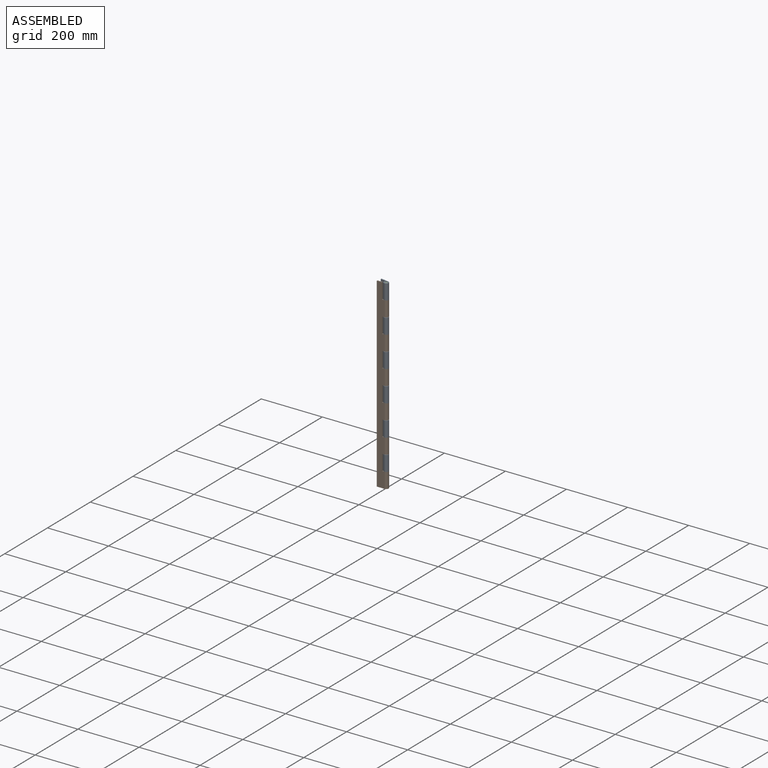
[diagram: assembled view]
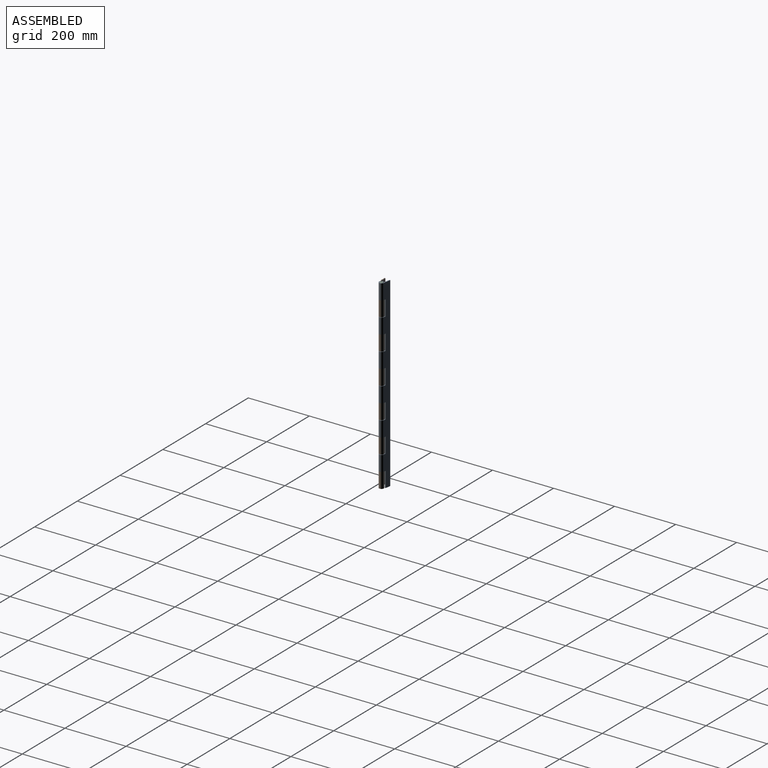
[diagram: assembled view, second angle]
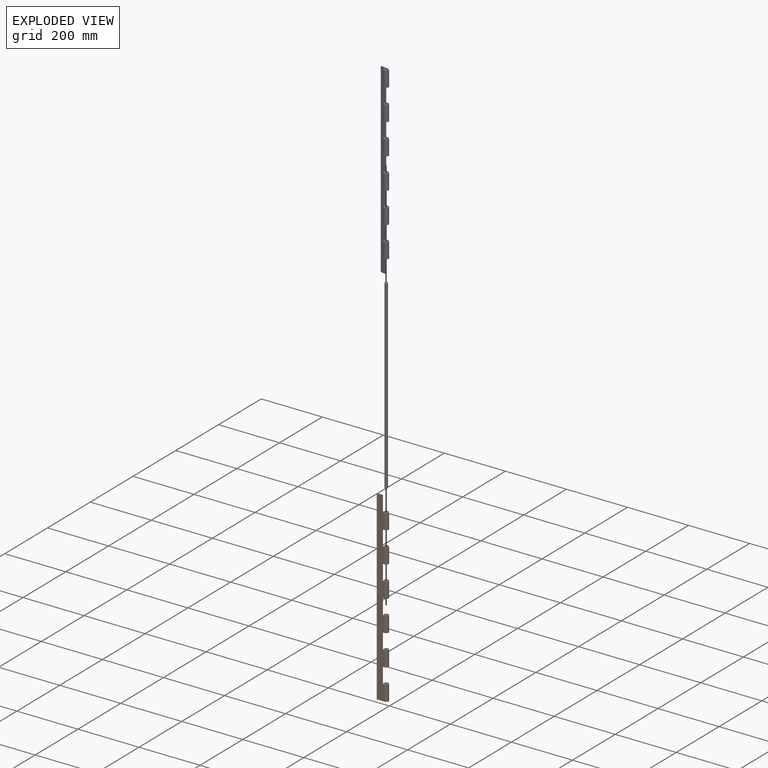
[diagram: exploded view]
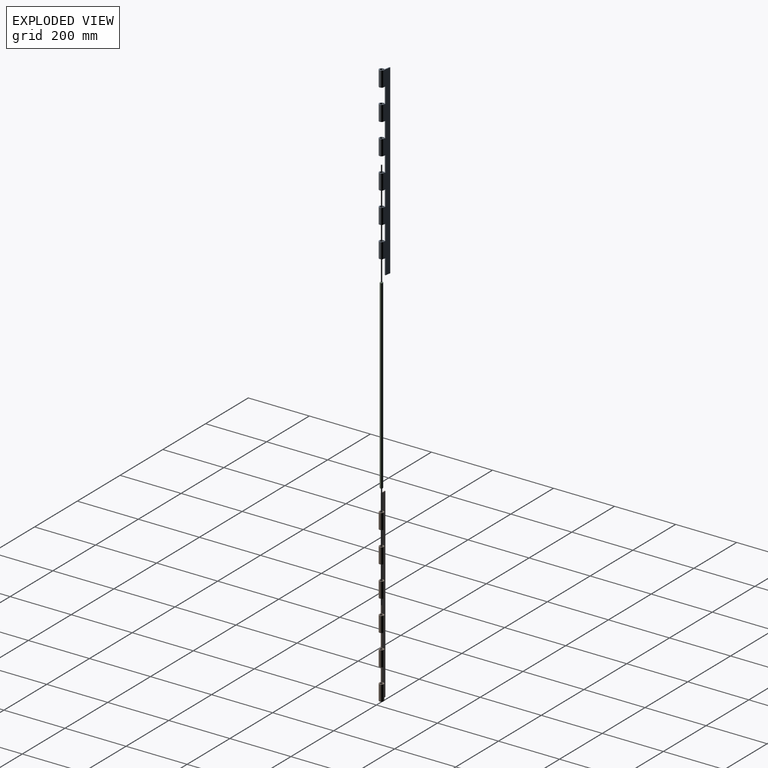
[diagram: exploded view, second angle]
ASSEMBLY  parts=3 mates=2
PART A: 40 faces, bbox 33.2x15.6x609.6 mm
  f0: cylinder r=7.81mm len=50.8mm, axis (0,0,-1), area 2042.9mm2, adj f16,f19,f23,f25
  f1: cylinder r=4.76mm len=50.8mm, axis (0,0,-1), area 1245.7mm2, adj f17,f18,f21,f39
  f2: cylinder r=7.81mm len=50.8mm, axis (0,0,-1), area 2042.9mm2, adj f15,f19,f27,f28
  f3: cylinder r=4.76mm len=50.8mm, axis (0,0,-1), area 1245.7mm2, adj f16,f17,f23,f25
  f4: cylinder r=4.76mm len=50.8mm, axis (0,0,-1), area 1245.7mm2, adj f15,f17,f27,f28
  f5: cylinder r=7.81mm len=50.8mm, axis (0,0,-1), area 2042.9mm2, adj f14,f19,f30,f31
  f6: cylinder r=4.76mm len=50.8mm, axis (0,0,-1), area 1245.7mm2, adj f14,f17,f30,f31
  f7: cylinder r=7.81mm len=50.8mm, axis (0,0,-1), area 2042.9mm2, adj f13,f19,f33,f34
  f8: cylinder r=4.76mm len=50.8mm, axis (0,0,-1), area 1245.7mm2, adj f13,f17,f33,f34
  f9: cylinder r=7.81mm len=50.8mm, axis (0,0,-1), area 2042.9mm2, adj f12,f19,f36,f37
  f10: cylinder r=4.76mm len=50.8mm, axis (0,0,-1), area 1245.7mm2, adj f12,f17,f36,f37
  f11: cylinder r=7.81mm len=50.8mm, axis (0,0,-1), area 2042.9mm2, adj f18,f19,f21,f39
  f12: plane 50.8x2.76mm, normal (-0.42,-0.91,0), area 154.8mm2, adj f9,f10,f36,f37
  f13: plane 50.8x2.76mm, normal (-0.42,-0.91,0), area 154.8mm2, adj f7,f8,f33,f34
  f14: plane 50.8x2.76mm, normal (-0.42,-0.91,0), area 154.8mm2, adj f5,f6,f30,f31
  f15: plane 50.8x2.76mm, normal (-0.42,-0.91,0), area 154.8mm2, adj f2,f4,f27,f28
  f16: plane 50.8x2.76mm, normal (-0.42,-0.91,0), area 154.8mm2, adj f0,f3,f23,f25
  f17: plane 609.6x25.4mm, normal (0,1,0), area 13103.2mm2, adj f1,f3,f4,f6,f8,f10,f20,f21
  f18: plane 50.8x2.76mm, normal (-0.42,-0.91,0), area 154.8mm2, adj f1,f11,f21,f39
  f19: plane 609.6x25.4mm, normal (0,-1,0), area 13103.2mm2, adj f0,f2,f5,f7,f9,f11,f20,f21
  f20: plane 609.6x3.05mm, normal (1,0,0), area 1858.1mm2, adj f17,f19,f21,f22
  f21: plane 33.21x15.62mm, normal (0,0,1), area 176.1mm2, adj f1,f11,f17,f18,f19,f20
  f22: plane 17.59x3.05mm, normal (0,0,-1), area 53.6mm2, adj f17,f19,f20,f24
  f23: plane 15.62x15.62mm, normal (0,0,-1), area 122.5mm2, adj f0,f3,f16,f17,f19,f24
  f24: plane 50.8x3.05mm, normal (-1,0,0), area 154.8mm2, adj f17,f19,f22,f23
  f25: plane 15.62x15.62mm, normal (0,0,1), area 122.5mm2, adj f0,f3,f16,f17,f19,f26
  f26: plane 50.8x3.05mm, normal (-1,0,0), area 154.8mm2, adj f17,f19,f25,f27
  f27: plane 15.62x15.62mm, normal (0,0,-1), area 122.5mm2, adj f2,f4,f15,f17,f19,f26
  f28: plane 15.62x15.62mm, normal (0,0,1), area 122.5mm2, adj f2,f4,f15,f17,f19,f29
  f29: plane 50.8x3.05mm, normal (-1,0,0), area 154.8mm2, adj f17,f19,f28,f30
  f30: plane 15.62x15.62mm, normal (0,0,-1), area 122.5mm2, adj f5,f6,f14,f17,f19,f29
  f31: plane 15.62x15.62mm, normal (0,0,1), area 122.5mm2, adj f5,f6,f14,f17,f19,f32
  f32: plane 50.8x3.05mm, normal (-1,0,0), area 154.8mm2, adj f17,f19,f31,f33
  f33: plane 15.62x15.62mm, normal (0,0,-1), area 122.5mm2, adj f7,f8,f13,f17,f19,f32
  f34: plane 15.62x15.62mm, normal (0,0,1), area 122.5mm2, adj f7,f8,f13,f17,f19,f35
  f35: plane 50.8x3.05mm, normal (-1,0,0), area 154.8mm2, adj f17,f19,f34,f36
  f36: plane 15.62x15.62mm, normal (0,0,-1), area 122.5mm2, adj f9,f10,f12,f17,f19,f35
  f37: plane 15.62x15.62mm, normal (0,0,1), area 122.5mm2, adj f9,f10,f12,f17,f19,f38
  f38: plane 50.8x3.05mm, normal (-1,0,0), area 154.8mm2, adj f17,f19,f37,f39
  f39: plane 15.62x15.62mm, normal (0,0,-1), area 122.5mm2, adj f1,f11,f17,f18,f19,f38
PART B: 40 faces, bbox 33.2x15.6x609.6 mm
  f0: cylinder r=4.76mm len=50.8mm, axis (0,0,-1), area 1245.7mm2, adj f20,f37,f38,f39
  f1: cylinder r=7.81mm len=50.8mm, axis (0,0,-1), area 2042.9mm2, adj f18,f37,f38,f39
  f2: cylinder r=4.76mm len=50.8mm, axis (0,0,-1), area 1245.7mm2, adj f20,f34,f35,f36
  f3: cylinder r=7.81mm len=50.8mm, axis (0,0,-1), area 2042.9mm2, adj f18,f34,f35,f36
  f4: cylinder r=4.76mm len=50.8mm, axis (0,0,-1), area 1245.7mm2, adj f20,f31,f32,f33
  f5: cylinder r=7.81mm len=50.8mm, axis (0,0,-1), area 2042.9mm2, adj f18,f31,f32,f33
  f6: cylinder r=4.76mm len=50.8mm, axis (0,0,-1), area 1245.7mm2, adj f20,f28,f29,f30
  f7: cylinder r=7.81mm len=50.8mm, axis (0,0,-1), area 2042.9mm2, adj f18,f28,f29,f30
  f8: cylinder r=4.76mm len=50.8mm, axis (0,0,-1), area 1245.7mm2, adj f20,f25,f26,f27
  f9: cylinder r=7.81mm len=50.8mm, axis (0,0,-1), area 2042.9mm2, adj f18,f25,f26,f27
  f10: cylinder r=4.76mm len=50.8mm, axis (0,0,-1), area 1245.7mm2, adj f19,f20,f21,f22
  f11: cylinder r=7.81mm len=50.8mm, axis (0,0,-1), area 2042.9mm2, adj f18,f19,f21,f22
  f12: plane 50.8x3.05mm, normal (1,0,0), area 154.8mm2, adj f18,f20,f24,f38
  f13: plane 50.8x3.05mm, normal (1,0,0), area 154.8mm2, adj f18,f20,f35,f39
  f14: plane 50.8x3.05mm, normal (1,0,0), area 154.8mm2, adj f18,f20,f32,f36
  f15: plane 50.8x3.05mm, normal (1,0,0), area 154.8mm2, adj f18,f20,f29,f33
  f16: plane 50.8x3.05mm, normal (1,0,0), area 154.8mm2, adj f18,f20,f26,f30
  f17: plane 609.6x3.05mm, normal (-1,0,0), area 1858.1mm2, adj f18,f20,f22,f24
  f18: plane 609.6x25.4mm, normal (0,-1,0), area 13095.5mm2, adj f1,f3,f5,f7,f9,f11,f12,f13
  f19: plane 50.8x2.76mm, normal (0.42,-0.91,0), area 154.8mm2, adj f10,f11,f21,f22
  f20: plane 609.6x25.4mm, normal (0,1,0), area 13095.5mm2, adj f0,f2,f4,f6,f8,f10,f12,f13
  f21: plane 15.65x15.62mm, normal (0,0,1), area 122.5mm2, adj f10,f11,f18,f19,f20,f23
  f22: plane 33.21x15.62mm, normal (0,0,-1), area 176.1mm2, adj f10,f11,f17,f18,f19,f20
  f23: plane 50.8x3.05mm, normal (1,0,0), area 154.8mm2, adj f18,f20,f21,f27
  f24: plane 17.56x3.05mm, normal (0,0,1), area 53.5mm2, adj f12,f17,f18,f20
  f25: plane 50.8x2.76mm, normal (0.42,-0.91,0), area 154.8mm2, adj f8,f9,f26,f27
  f26: plane 15.65x15.62mm, normal (0,0,1), area 122.5mm2, adj f8,f9,f16,f18,f20,f25
  f27: plane 15.65x15.62mm, normal (0,0,-1), area 122.5mm2, adj f8,f9,f18,f20,f23,f25
  f28: plane 50.8x2.76mm, normal (0.42,-0.91,0), area 154.8mm2, adj f6,f7,f29,f30
  f29: plane 15.65x15.62mm, normal (0,0,1), area 122.5mm2, adj f6,f7,f15,f18,f20,f28
  f30: plane 15.65x15.62mm, normal (0,0,-1), area 122.5mm2, adj f6,f7,f16,f18,f20,f28
  f31: plane 50.8x2.76mm, normal (0.42,-0.91,0), area 154.8mm2, adj f4,f5,f32,f33
  f32: plane 15.65x15.62mm, normal (0,0,1), area 122.5mm2, adj f4,f5,f14,f18,f20,f31
  f33: plane 15.65x15.62mm, normal (0,0,-1), area 122.5mm2, adj f4,f5,f15,f18,f20,f31
  f34: plane 50.8x2.76mm, normal (0.42,-0.91,0), area 154.8mm2, adj f2,f3,f35,f36
  f35: plane 15.65x15.62mm, normal (0,0,1), area 122.5mm2, adj f2,f3,f13,f18,f20,f34
  f36: plane 15.65x15.62mm, normal (0,0,-1), area 122.5mm2, adj f2,f3,f14,f18,f20,f34
  f37: plane 50.8x2.76mm, normal (0.42,-0.91,0), area 154.8mm2, adj f0,f1,f38,f39
  f38: plane 15.65x15.62mm, normal (0,0,1), area 122.5mm2, adj f0,f1,f12,f18,f20,f37
  f39: plane 15.65x15.62mm, normal (0,0,-1), area 122.5mm2, adj f0,f1,f13,f18,f20,f37
PART C: 5 faces, bbox 9.5x9.5x609.6 mm
  f0: cone r=4.76mm half-angle=45deg, axis (0,0,1), area 36.3mm2, adj f2,f4
  f1: cone r=3.81mm half-angle=45deg, axis (0,0,-1), area 36.3mm2, adj f2,f3
  f2: cylinder r=4.76mm len=607.7mm, axis (0,0,-1), area 18184.5mm2, adj f0,f1
  f3: plane 7.62x7.62mm, normal (0,0,1), area 45.6mm2, adj f1
  f4: plane 7.62x7.62mm, normal (0,0,-1), area 45.6mm2, adj f0
PLACE A rot(axis=(0,0,1),170deg) t=(-14.64,6.48,29.13)mm
PLACE B t=(-14.64,6.48,30.02)mm fixed
PLACE C t=(-14.64,6.48,29.06)mm
MATE cylindrical C.f0 <-> B.f0  axis (0,0,-1) through (-14.64,6.48,-274.78)mm
MATE cylindrical A.f0 <-> C.f0  axis (0,0,-1) through (-14.64,6.48,333.93)mm
